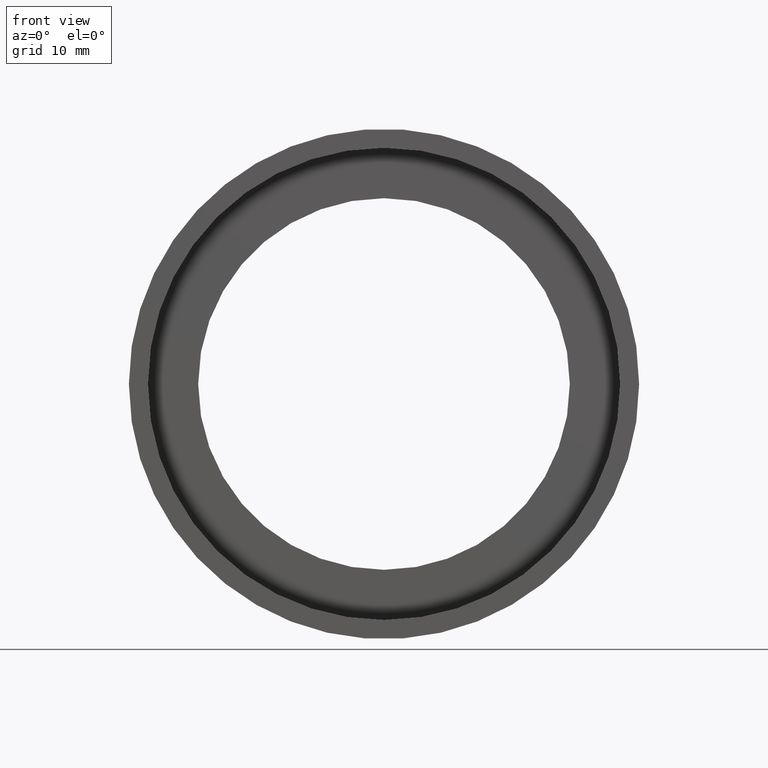
[diagram: clean part render]
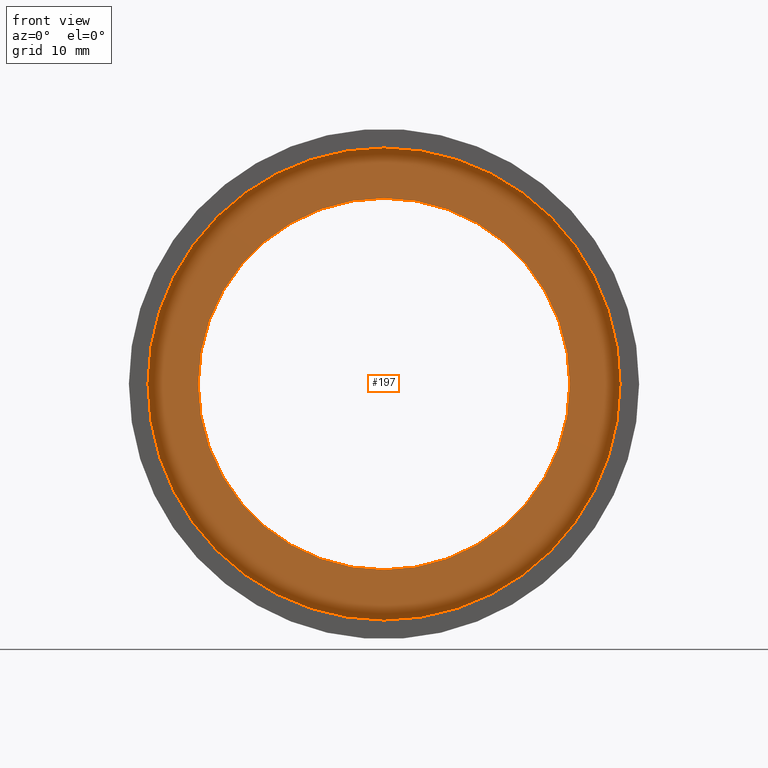
[diagram: same view with one face highlighted and labeled with its STEP entity id]
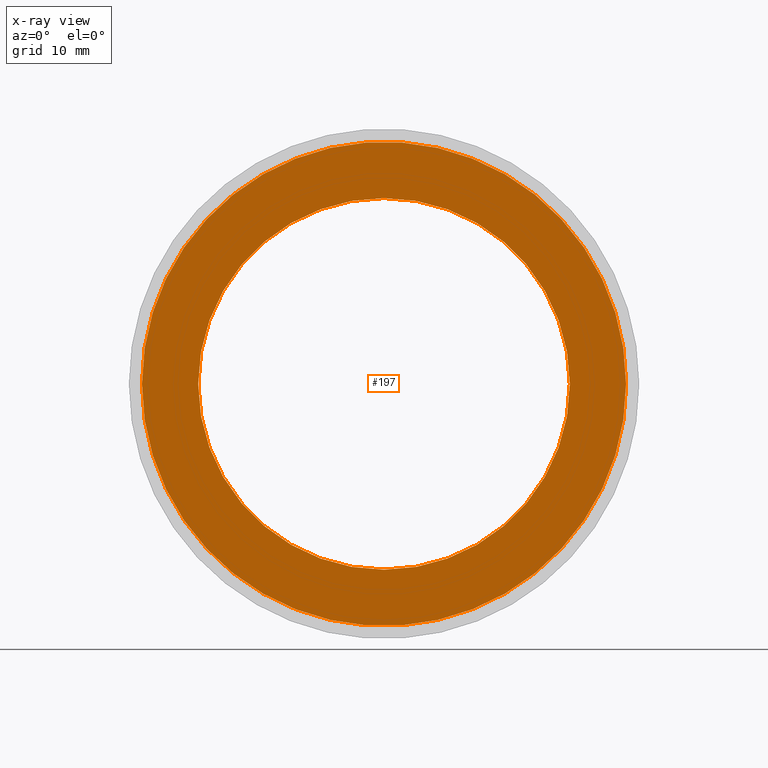
[diagram: x-ray of the same camera — body ghosted, the highlighted face saturated]
A machine part, front view. The second image highlights one B-rep face of the part: STEP entity #197.
The next image is the same camera in x-ray: the body ghosted, the highlighted face saturated — about 0% of this face is hidden behind the body in this view.
In plain terms, the highlighted planar face has unit normal (-0, 1, 0).
Its self-contained STEP definition (entity closure, byte-faithful):
#57 = AXIS2_PLACEMENT_3D ( 'NONE', #568, #597, #394 ) ;
#63 = CIRCLE ( 'NONE', #186, 18.50000000000000000 ) ;
#65 = DIRECTION ( 'NONE',  ( -1.000000000000000000, -1.406532548089303000E-016, 0.0000000000000000000 ) ) ;
#70 = DIRECTION ( 'NONE',  ( -1.224646799147351000E-016, 1.000000000000000000, -0.0000000000000000000 ) ) ;
#75 = CARTESIAN_POINT ( 'NONE',  ( 1.271920398992858000E-015, 6.499999999999997300, 0.0000000000000000000 ) ) ;
#100 = DIRECTION ( 'NONE',  ( -1.000000000000000000, -1.079703408284319800E-016, 0.0000000000000000000 ) ) ;
#101 = VERTEX_POINT ( 'NONE', #355 ) ;
#103 = DIRECTION ( 'NONE',  ( -1.224646799147351000E-016, 1.000000000000000000, -0.0000000000000000000 ) ) ;
#105 = CARTESIAN_POINT ( 'NONE',  ( 1.271920398992858200E-015, 6.499999999999995600, 0.0000000000000000000 ) ) ;
#173 = EDGE_LOOP ( 'NONE', ( #474, #199 ) ) ;
#176 = AXIS2_PLACEMENT_3D ( 'NONE', #531, #529, #538 ) ;
#182 = CARTESIAN_POINT ( 'NONE',  ( 18.50000000000000000, 6.500000000000000000, 2.265596578422603400E-015 ) ) ;
#186 = AXIS2_PLACEMENT_3D ( 'NONE', #75, #70, #65 ) ;
#195 = EDGE_CURVE ( 'NONE', #448, #101, #413, .T. ) ;
#197 = ADVANCED_FACE ( 'NONE', ( #422, #409 ), #616, .F. ) ;
#199 = ORIENTED_EDGE ( 'NONE', *, *, #195, .F. ) ;
#229 = CIRCLE ( 'NONE', #613, 24.10000000000000100 ) ;
#252 = CARTESIAN_POINT ( 'NONE',  ( 24.10000000000000100, 6.499999999999998200, 2.951398785945121300E-015 ) ) ;
#275 = EDGE_CURVE ( 'NONE', #489, #313, #495, .T. ) ;
#313 = VERTEX_POINT ( 'NONE', #400 ) ;
#318 = CARTESIAN_POINT ( 'NONE',  ( 18.50000000000000000, 6.499999999999999100, 0.0000000000000000000 ) ) ;
#355 = CARTESIAN_POINT ( 'NONE',  ( -24.10000000000000100, 6.499999999999992900, 0.0000000000000000000 ) ) ;
#380 = EDGE_LOOP ( 'NONE', ( #415, #514 ) ) ;
#394 = DIRECTION ( 'NONE',  ( -1.000000000000000000, -1.079703408284319800E-016, 0.0000000000000000000 ) ) ;
#400 = CARTESIAN_POINT ( 'NONE',  ( -18.50000000000000000, 6.499999999999994700, 0.0000000000000000000 ) ) ;
#409 = FACE_BOUND ( 'NONE', #380, .T. ) ;
#413 = CIRCLE ( 'NONE', #57, 24.10000000000000100 ) ;
#415 = ORIENTED_EDGE ( 'NONE', *, *, #544, .T. ) ;
#422 = FACE_OUTER_BOUND ( 'NONE', #173, .T. ) ;
#448 = VERTEX_POINT ( 'NONE', #252 ) ;
#474 = ORIENTED_EDGE ( 'NONE', *, *, #510, .F. ) ;
#489 = VERTEX_POINT ( 'NONE', #182 ) ;
#495 = CIRCLE ( 'NONE', #176, 18.50000000000000000 ) ;
#498 = DIRECTION ( 'NONE',  ( -1.224646799147351000E-016, 1.000000000000000000, 0.0000000000000000000 ) ) ;
#508 = DIRECTION ( 'NONE',  ( -1.000000000000000000, -1.224646799147351000E-016, 0.0000000000000000000 ) ) ;
#510 = EDGE_CURVE ( 'NONE', #101, #448, #229, .T. ) ;
#514 = ORIENTED_EDGE ( 'NONE', *, *, #275, .T. ) ;
#529 = DIRECTION ( 'NONE',  ( -1.224646799147351000E-016, 1.000000000000000000, -0.0000000000000000000 ) ) ;
#531 = CARTESIAN_POINT ( 'NONE',  ( 1.271920398992858000E-015, 6.499999999999997300, 0.0000000000000000000 ) ) ;
#538 = DIRECTION ( 'NONE',  ( -1.000000000000000000, -1.406532548089303000E-016, 0.0000000000000000000 ) ) ;
#544 = EDGE_CURVE ( 'NONE', #313, #489, #63, .T. ) ;
#562 = AXIS2_PLACEMENT_3D ( 'NONE', #318, #498, #508 ) ;
#568 = CARTESIAN_POINT ( 'NONE',  ( 1.271920398992858200E-015, 6.499999999999995600, 0.0000000000000000000 ) ) ;
#597 = DIRECTION ( 'NONE',  ( -1.224646799147351000E-016, 1.000000000000000000, -0.0000000000000000000 ) ) ;
#613 = AXIS2_PLACEMENT_3D ( 'NONE', #105, #103, #100 ) ;
#616 = PLANE ( 'NONE',  #562 ) ;